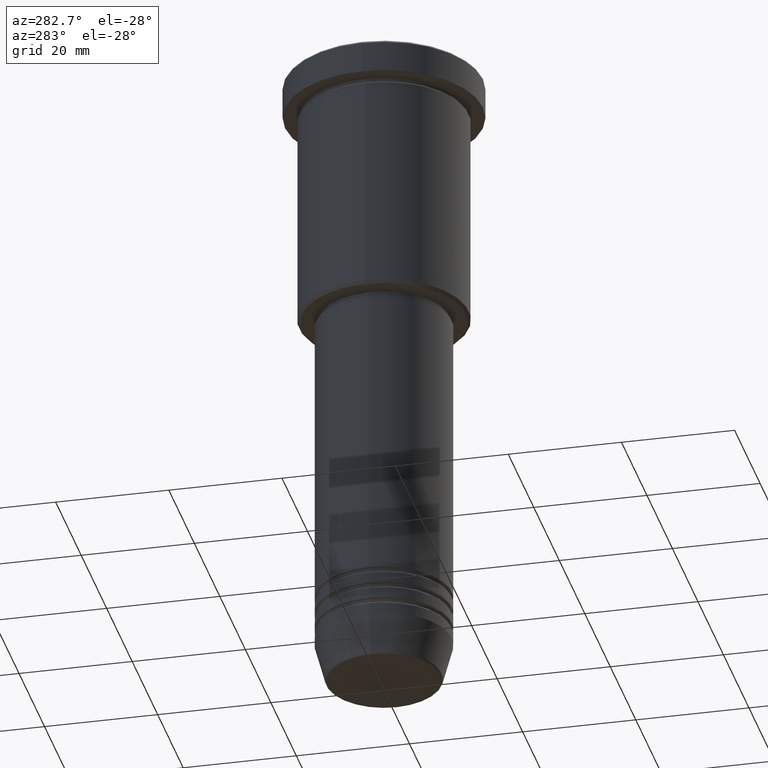
[diagram: clean part render]
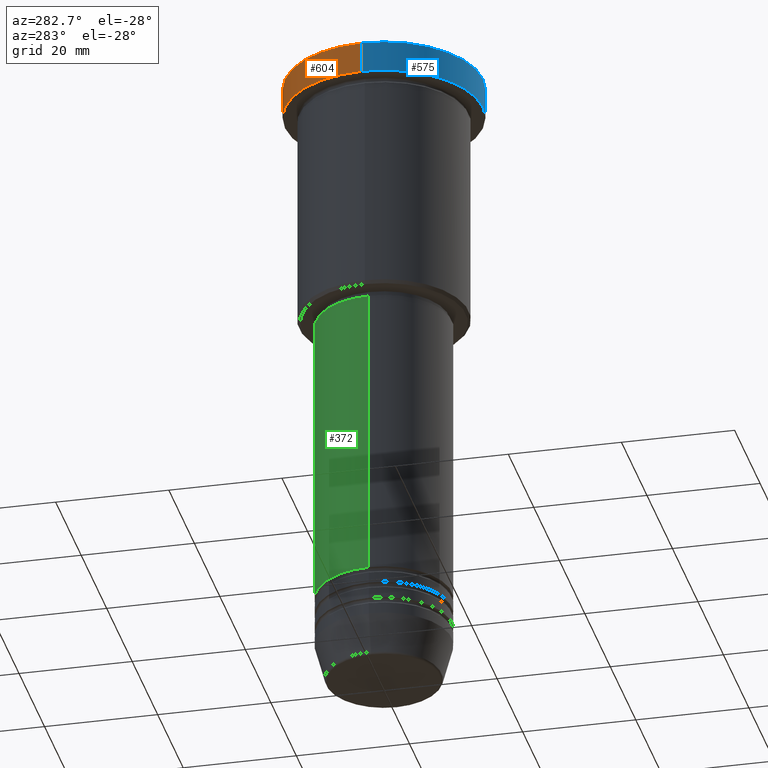
[diagram: same view with three faces highlighted in distinct colors, each labeled with its STEP entity id]
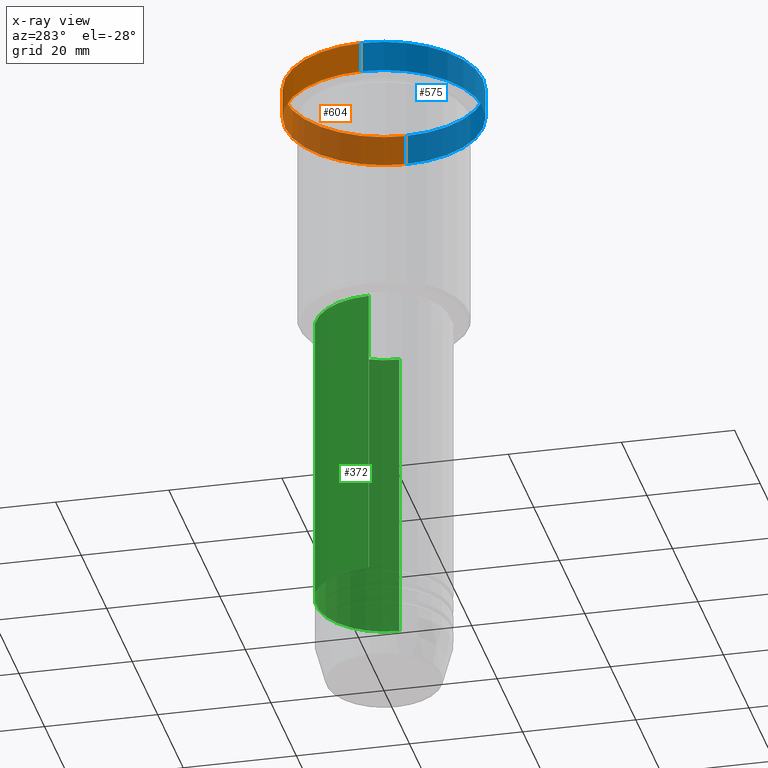
[diagram: x-ray of the same camera — body ghosted, the three highlighted faces saturated]
A machine part, auxiliary view with three faces highlighted in distinct colors.
The next image is the same camera in x-ray (body ghosted, the three faces saturated) — at least one of them is partly hidden behind the body in this view.
Their STEP definitions:

[orange] entity #604 — the highlighted cylindrical surface (partial cylindrical patch) has radius 17.5 mm, axis along (-0, -0, 1).
#1 = CARTESIAN_POINT ( 'NONE',  ( 0.000000000000000000, 0.000000000000000000, -5.999999999999995559 ) ) ;
#73 = AXIS2_PLACEMENT_3D ( 'NONE', #1146, #680, #232 ) ;
#106 = ORIENTED_EDGE ( 'NONE', *, *, #850, .T. ) ;
#131 = DIRECTION ( 'NONE',  ( 1.000000000000000000, 0.000000000000000000, 0.000000000000000000 ) ) ;
#133 = FACE_OUTER_BOUND ( 'NONE', #1137, .T. ) ;
#151 = AXIS2_PLACEMENT_3D ( 'NONE', #1, #744, #844 ) ;
#190 = CARTESIAN_POINT ( 'NONE',  ( 17.50000000000000000, 0.000000000000000000, -5.999999999999995559 ) ) ;
#232 = DIRECTION ( 'NONE',  ( 1.000000000000000000, 0.000000000000000000, 0.000000000000000000 ) ) ;
#250 = LINE ( 'NONE', #600, #856 ) ;
#286 = CIRCLE ( 'NONE', #151, 17.50000000000000000 ) ;
#312 = VERTEX_POINT ( 'NONE', #190 ) ;
#315 = EDGE_CURVE ( 'NONE', #959, #1016, #465, .T. ) ;
#328 = CYLINDRICAL_SURFACE ( 'NONE', #73, 17.50000000000000000 ) ;
#345 = DIRECTION ( 'NONE',  ( -0.000000000000000000, -0.000000000000000000, 1.000000000000000000 ) ) ;
#395 = ORIENTED_EDGE ( 'NONE', *, *, #641, .F. ) ;
#455 = AXIS2_PLACEMENT_3D ( 'NONE', #582, #689, #131 ) ;
#465 = LINE ( 'NONE', #804, #656 ) ;
#527 = VERTEX_POINT ( 'NONE', #1012 ) ;
#582 = CARTESIAN_POINT ( 'NONE',  ( 0.000000000000000000, 0.000000000000000000, -0.5000000000000004441 ) ) ;
#600 = CARTESIAN_POINT ( 'NONE',  ( 17.50000000000000000, 0.000000000000000000, 0.000000000000000000 ) ) ;
#604 = ADVANCED_FACE ( 'NONE', ( #133 ), #328, .T. ) ;
#641 = EDGE_CURVE ( 'NONE', #312, #527, #250, .T. ) ;
#656 = VECTOR ( 'NONE', #823, 1000.000000000000000 ) ;
#680 = DIRECTION ( 'NONE',  ( -0.000000000000000000, -0.000000000000000000, 1.000000000000000000 ) ) ;
#689 = DIRECTION ( 'NONE',  ( 0.000000000000000000, 0.000000000000000000, -1.000000000000000000 ) ) ;
#693 = ORIENTED_EDGE ( 'NONE', *, *, #315, .T. ) ;
#696 = CARTESIAN_POINT ( 'NONE',  ( -17.50000000000000000, 2.143131898507868248E-15, -5.999999999999995559 ) ) ;
#744 = DIRECTION ( 'NONE',  ( -0.000000000000000000, -0.000000000000000000, 1.000000000000000000 ) ) ;
#804 = CARTESIAN_POINT ( 'NONE',  ( -17.50000000000000000, 2.143131898507868248E-15, 0.000000000000000000 ) ) ;
#810 = ORIENTED_EDGE ( 'NONE', *, *, #908, .T. ) ;
#823 = DIRECTION ( 'NONE',  ( -0.000000000000000000, -0.000000000000000000, 1.000000000000000000 ) ) ;
#844 = DIRECTION ( 'NONE',  ( 1.000000000000000000, 0.000000000000000000, 0.000000000000000000 ) ) ;
#850 = EDGE_CURVE ( 'NONE', #312, #959, #286, .T. ) ;
#856 = VECTOR ( 'NONE', #345, 1000.000000000000000 ) ;
#908 = EDGE_CURVE ( 'NONE', #1016, #527, #951, .T. ) ;
#951 = CIRCLE ( 'NONE', #455, 17.50000000000000000 ) ;
#959 = VERTEX_POINT ( 'NONE', #696 ) ;
#1012 = CARTESIAN_POINT ( 'NONE',  ( 17.50000000000000000, 0.000000000000000000, -0.5000000000000004441 ) ) ;
#1013 = CARTESIAN_POINT ( 'NONE',  ( -17.50000000000000000, 2.143131898507868248E-15, -0.5000000000000004441 ) ) ;
#1016 = VERTEX_POINT ( 'NONE', #1013 ) ;
#1137 = EDGE_LOOP ( 'NONE', ( #106, #693, #810, #395 ) ) ;
#1146 = CARTESIAN_POINT ( 'NONE',  ( 0.000000000000000000, 0.000000000000000000, 0.000000000000000000 ) ) ;

[blue] entity #575 — the highlighted cylindrical surface (partial cylindrical patch) has radius 17.5 mm, axis along (-0, -0, 1).
#3 = DIRECTION ( 'NONE',  ( 1.000000000000000000, 0.000000000000000000, 0.000000000000000000 ) ) ;
#11 = AXIS2_PLACEMENT_3D ( 'NONE', #77, #722, #174 ) ;
#33 = CARTESIAN_POINT ( 'NONE',  ( 0.000000000000000000, 0.000000000000000000, 0.000000000000000000 ) ) ;
#41 = ORIENTED_EDGE ( 'NONE', *, *, #315, .F. ) ;
#77 = CARTESIAN_POINT ( 'NONE',  ( 0.000000000000000000, 0.000000000000000000, -5.999999999999995559 ) ) ;
#174 = DIRECTION ( 'NONE',  ( 1.000000000000000000, 0.000000000000000000, 0.000000000000000000 ) ) ;
#190 = CARTESIAN_POINT ( 'NONE',  ( 17.50000000000000000, 0.000000000000000000, -5.999999999999995559 ) ) ;
#200 = FACE_OUTER_BOUND ( 'NONE', #1179, .T. ) ;
#201 = ORIENTED_EDGE ( 'NONE', *, *, #641, .T. ) ;
#204 = CIRCLE ( 'NONE', #599, 17.50000000000000000 ) ;
#210 = EDGE_CURVE ( 'NONE', #527, #1016, #204, .T. ) ;
#250 = LINE ( 'NONE', #600, #856 ) ;
#285 = CIRCLE ( 'NONE', #11, 17.50000000000000000 ) ;
#312 = VERTEX_POINT ( 'NONE', #190 ) ;
#315 = EDGE_CURVE ( 'NONE', #959, #1016, #465, .T. ) ;
#321 = DIRECTION ( 'NONE',  ( 0.000000000000000000, 0.000000000000000000, -1.000000000000000000 ) ) ;
#345 = DIRECTION ( 'NONE',  ( -0.000000000000000000, -0.000000000000000000, 1.000000000000000000 ) ) ;
#422 = CARTESIAN_POINT ( 'NONE',  ( 0.000000000000000000, 0.000000000000000000, -0.5000000000000004441 ) ) ;
#465 = LINE ( 'NONE', #804, #656 ) ;
#527 = VERTEX_POINT ( 'NONE', #1012 ) ;
#561 = DIRECTION ( 'NONE',  ( -0.000000000000000000, -0.000000000000000000, 1.000000000000000000 ) ) ;
#575 = ADVANCED_FACE ( 'NONE', ( #200 ), #939, .T. ) ;
#599 = AXIS2_PLACEMENT_3D ( 'NONE', #422, #321, #953 ) ;
#600 = CARTESIAN_POINT ( 'NONE',  ( 17.50000000000000000, 0.000000000000000000, 0.000000000000000000 ) ) ;
#641 = EDGE_CURVE ( 'NONE', #312, #527, #250, .T. ) ;
#656 = VECTOR ( 'NONE', #823, 1000.000000000000000 ) ;
#677 = EDGE_CURVE ( 'NONE', #959, #312, #285, .T. ) ;
#696 = CARTESIAN_POINT ( 'NONE',  ( -17.50000000000000000, 2.143131898507868248E-15, -5.999999999999995559 ) ) ;
#722 = DIRECTION ( 'NONE',  ( -0.000000000000000000, -0.000000000000000000, 1.000000000000000000 ) ) ;
#804 = CARTESIAN_POINT ( 'NONE',  ( -17.50000000000000000, 2.143131898507868248E-15, 0.000000000000000000 ) ) ;
#823 = DIRECTION ( 'NONE',  ( -0.000000000000000000, -0.000000000000000000, 1.000000000000000000 ) ) ;
#856 = VECTOR ( 'NONE', #345, 1000.000000000000000 ) ;
#881 = ORIENTED_EDGE ( 'NONE', *, *, #677, .T. ) ;
#921 = ORIENTED_EDGE ( 'NONE', *, *, #210, .T. ) ;
#939 = CYLINDRICAL_SURFACE ( 'NONE', #948, 17.50000000000000000 ) ;
#948 = AXIS2_PLACEMENT_3D ( 'NONE', #33, #561, #3 ) ;
#953 = DIRECTION ( 'NONE',  ( 1.000000000000000000, 0.000000000000000000, 0.000000000000000000 ) ) ;
#959 = VERTEX_POINT ( 'NONE', #696 ) ;
#1012 = CARTESIAN_POINT ( 'NONE',  ( 17.50000000000000000, 0.000000000000000000, -0.5000000000000004441 ) ) ;
#1013 = CARTESIAN_POINT ( 'NONE',  ( -17.50000000000000000, 2.143131898507868248E-15, -0.5000000000000004441 ) ) ;
#1016 = VERTEX_POINT ( 'NONE', #1013 ) ;
#1179 = EDGE_LOOP ( 'NONE', ( #41, #881, #201, #921 ) ) ;

[green] entity #372 — the highlighted cylindrical surface (partial cylindrical patch) has radius 12 mm, axis along (-0, -0, 1).
#74 = CIRCLE ( 'NONE', #778, 12.00000000000000000 ) ;
#79 = FACE_OUTER_BOUND ( 'NONE', #406, .T. ) ;
#119 = DIRECTION ( 'NONE',  ( 1.000000000000000000, 0.000000000000000000, 0.000000000000000000 ) ) ;
#121 = CARTESIAN_POINT ( 'NONE',  ( -12.00000000000000000, 1.469576158976823947E-15, 0.000000000000000000 ) ) ;
#150 = AXIS2_PLACEMENT_3D ( 'NONE', #981, #724, #622 ) ;
#263 = VERTEX_POINT ( 'NONE', #1040 ) ;
#289 = DIRECTION ( 'NONE',  ( -0.000000000000000000, -0.000000000000000000, 1.000000000000000000 ) ) ;
#329 = VECTOR ( 'NONE', #589, 1000.000000000000000 ) ;
#372 = ADVANCED_FACE ( 'NONE', ( #79 ), #1176, .T. ) ;
#406 = EDGE_LOOP ( 'NONE', ( #878, #424, #1070, #1002 ) ) ;
#424 = ORIENTED_EDGE ( 'NONE', *, *, #462, .T. ) ;
#444 = CARTESIAN_POINT ( 'NONE',  ( 0.000000000000000000, 0.000000000000000000, -99.99999999999997158 ) ) ;
#462 = EDGE_CURVE ( 'NONE', #845, #1183, #928, .T. ) ;
#503 = CARTESIAN_POINT ( 'NONE',  ( 12.00000000000000000, 0.000000000000000000, 0.000000000000000000 ) ) ;
#526 = VECTOR ( 'NONE', #289, 1000.000000000000000 ) ;
#571 = VERTEX_POINT ( 'NONE', #1017 ) ;
#589 = DIRECTION ( 'NONE',  ( -0.000000000000000000, -0.000000000000000000, 1.000000000000000000 ) ) ;
#622 = DIRECTION ( 'NONE',  ( 1.000000000000000000, 0.000000000000000000, 0.000000000000000000 ) ) ;
#624 = EDGE_CURVE ( 'NONE', #571, #263, #767, .T. ) ;
#660 = CARTESIAN_POINT ( 'NONE',  ( -12.00000000000000000, 1.469576158976823947E-15, -99.99999999999997158 ) ) ;
#724 = DIRECTION ( 'NONE',  ( -0.000000000000000000, -0.000000000000000000, 1.000000000000000000 ) ) ;
#767 = LINE ( 'NONE', #503, #329 ) ;
#778 = AXIS2_PLACEMENT_3D ( 'NONE', #444, #899, #1155 ) ;
#845 = VERTEX_POINT ( 'NONE', #660 ) ;
#862 = EDGE_CURVE ( 'NONE', #263, #1183, #1153, .T. ) ;
#878 = ORIENTED_EDGE ( 'NONE', *, *, #1014, .T. ) ;
#899 = DIRECTION ( 'NONE',  ( -0.000000000000000000, -0.000000000000000000, 1.000000000000000000 ) ) ;
#928 = LINE ( 'NONE', #121, #526 ) ;
#954 = CARTESIAN_POINT ( 'NONE',  ( -12.00000000000000000, 1.469576158976823947E-15, -47.00000000000000711 ) ) ;
#981 = CARTESIAN_POINT ( 'NONE',  ( 0.000000000000000000, 0.000000000000000000, 0.000000000000000000 ) ) ;
#1002 = ORIENTED_EDGE ( 'NONE', *, *, #624, .F. ) ;
#1014 = EDGE_CURVE ( 'NONE', #571, #845, #74, .T. ) ;
#1017 = CARTESIAN_POINT ( 'NONE',  ( 12.00000000000000000, 0.000000000000000000, -99.99999999999997158 ) ) ;
#1020 = DIRECTION ( 'NONE',  ( -0.000000000000000000, -0.000000000000000000, 1.000000000000000000 ) ) ;
#1040 = CARTESIAN_POINT ( 'NONE',  ( 12.00000000000000000, 0.000000000000000000, -47.00000000000000711 ) ) ;
#1070 = ORIENTED_EDGE ( 'NONE', *, *, #862, .F. ) ;
#1109 = CARTESIAN_POINT ( 'NONE',  ( 0.000000000000000000, 0.000000000000000000, -47.00000000000000711 ) ) ;
#1121 = AXIS2_PLACEMENT_3D ( 'NONE', #1109, #1020, #119 ) ;
#1153 = CIRCLE ( 'NONE', #1121, 12.00000000000000000 ) ;
#1155 = DIRECTION ( 'NONE',  ( 1.000000000000000000, 0.000000000000000000, 0.000000000000000000 ) ) ;
#1176 = CYLINDRICAL_SURFACE ( 'NONE', #150, 12.00000000000000000 ) ;
#1183 = VERTEX_POINT ( 'NONE', #954 ) ;